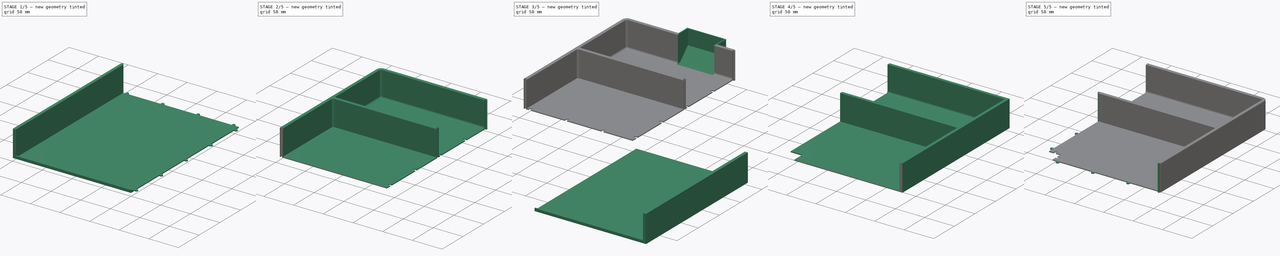
[diagram: build sequence overview — one tinted view per stage of 5, left to right]
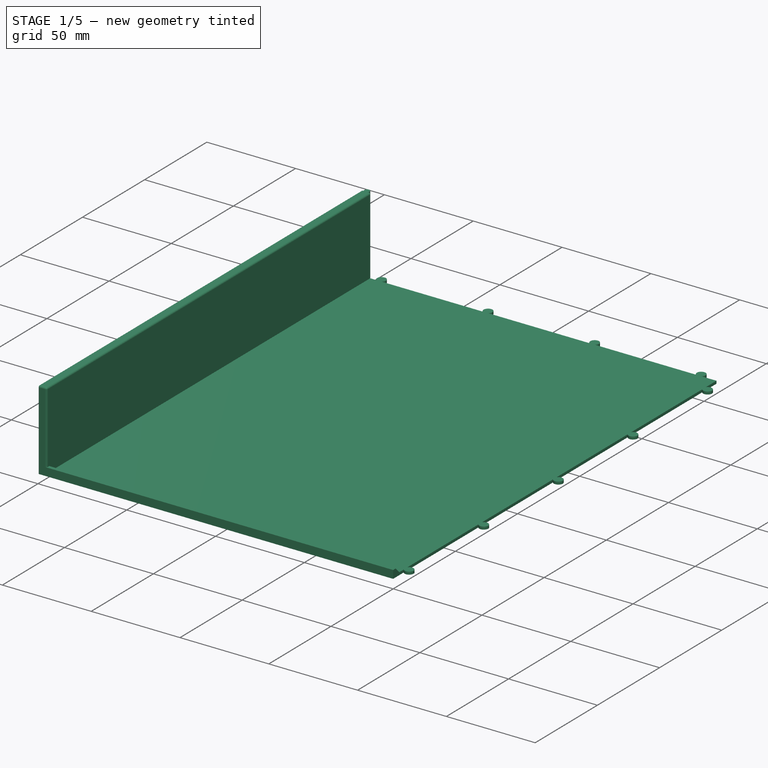
[diagram: stage 1 of 5 — iso view after this stage's code; geometry added in this stage tinted green]
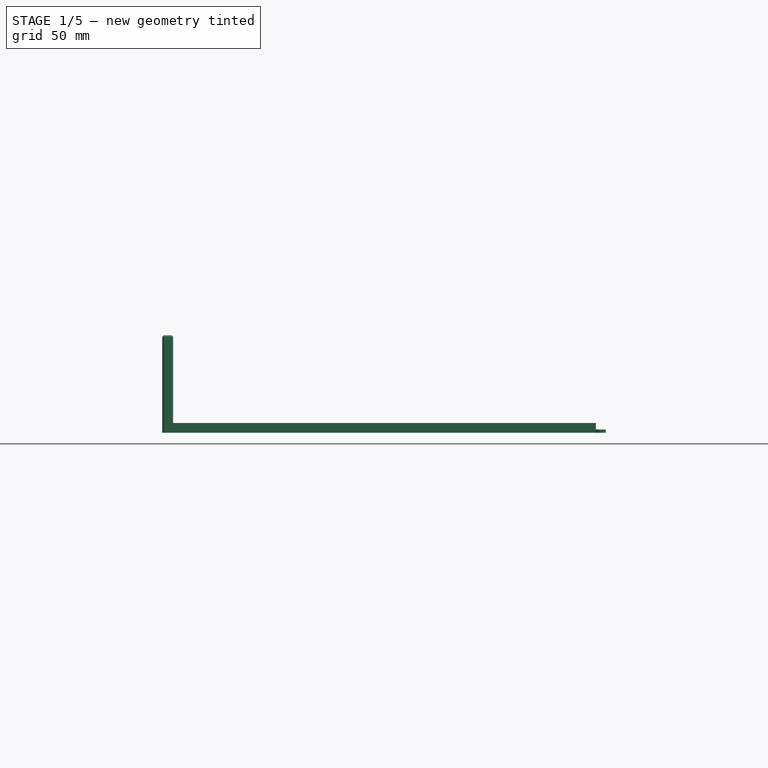
[diagram: stage 1 of 5 — front view after this stage's code; geometry added in this stage tinted green]
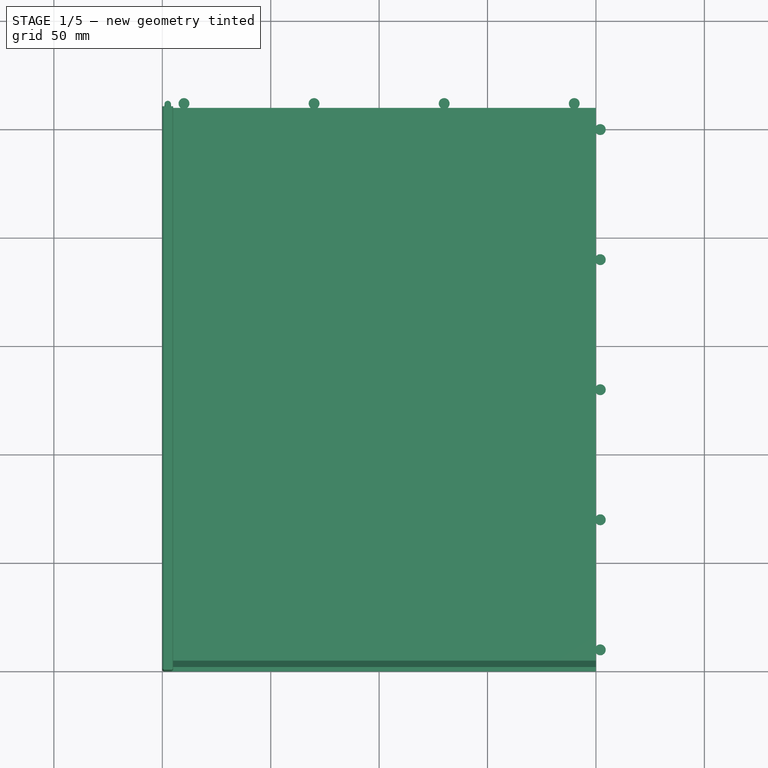
[diagram: stage 1 of 5 — top view after this stage's code; geometry added in this stage tinted green]
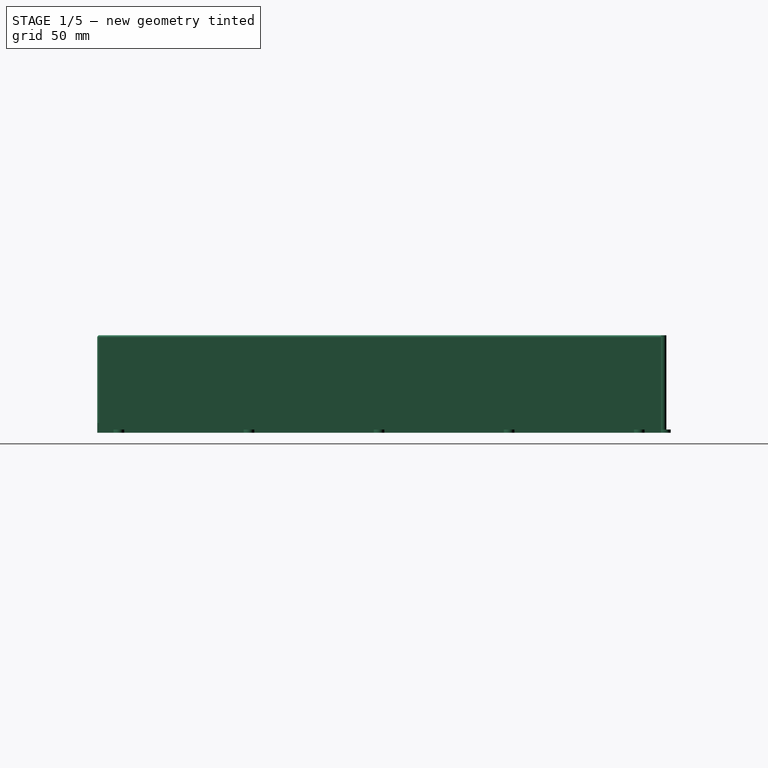
[diagram: stage 1 of 5 — right view after this stage's code; geometry added in this stage tinted green]
FCSTD DOCUMENT  (FreeCAD 1.1R20260325 (Git shallow))
Label: PoopAndPlatesDrawer
License: Creative Commons Attribution 4.0
objects: Sketcher::SketchObject×30, PartDesign::Pad×20, PartDesign::SubShapeBinder×9, PartDesign::Pocket×9, PartDesign::LinearPattern×8, PartDesign::Fillet×8, App::Point×4, PartDesign::Body×4
note: 200 computed .brp shape members not serialized (recipe doc carries the construction recipe); baked Part::Feature solids carry a one-line shape summary decoded from their .brp

FEATURE [App::Point] Origin001
  Role = Origin
FEATURE [Sketcher::SketchObject] Sketch  label="Master sketch"
  ArcFitTolerance = 1e-06
  AttachmentSupport = -> [Origin]
  ExternalTypes = [0]
  FullyConstrained = true
  MakeInternals = false
  MapMode = 5
  _ExternalGeoVersion = 1
  sketch-geometry (9):
    g0: LineSegment StartX=0 StartY=0 StartZ=0 EndX=384 EndY=0 EndZ=0
    g1: LineSegment StartX=384 StartY=0 StartZ=0 EndX=384 EndY=500 EndZ=0
    g2: LineSegment StartX=384 StartY=500 StartZ=0 EndX=0 EndY=500 EndZ=0
    g3: LineSegment StartX=0 StartY=500 StartZ=0 EndX=0 EndY=0 EndZ=0
    g4: LineSegment StartX=0 StartY=380 StartZ=0 EndX=384 EndY=380 EndZ=0
    g5: LineSegment StartX=0 StartY=260 StartZ=0 EndX=200 EndY=260 EndZ=0
    g6: LineSegment StartX=200 StartY=260 StartZ=0 EndX=200 EndY=0 EndZ=0
    g7: LineSegment StartX=200 StartY=240 StartZ=0 EndX=384 EndY=240 EndZ=0
    g8: LineSegment StartX=180 StartY=260 StartZ=0 EndX=180 EndY=500 EndZ=0
  constraints (30):
    c: Coincident(g0,g1)
    c: Coincident(g1,g2)
    c: Coincident(g2,g3)
    c: Coincident(g3,g0)
    c: Horizontal(g0)
    c: Horizontal(g2)
    c: Vertical(g1)
    c: Vertical(g3)
    c: Distance(g1,g3) = 384
    c: Distance(g0,g2) = 500
    c: Coincident(g0,g-1)
    c: PointOnObject(g4,g3)
    c: PointOnObject(g4,g1)
    c: Horizontal(g4)
    c: DistanceY(g0,g4) = 380
    c: Distance(g5) = 200
    c: PointOnObject(g5,g3)
    c: Horizontal(g5)
    c: Coincident(g6,g5)
    c: PointOnObject(g6,g0)
    c: Vertical(g6)
    c: PointOnObject(g7,g6)
    c: PointOnObject(g7,g1)
    c: Horizontal(g7)
    c: DistanceY(g7,g5) = 20
    c: DistanceY(g0,g5) = 260
    c: PointOnObject(g8,g5)
    c: PointOnObject(g8,g2)
    c: Vertical(g8)
    c: DistanceX(g8,g5) = 20
FEATURE [PartDesign::SubShapeBinder] Binder  label="Master sketch binder 1"
  BindCopyOnChange = 0
  BindMode = 0
  ClaimChildren = false
  Context = -> Body [Binder.]
  Fuse = false
  MakeFace = true
  OffsetFill = false
  OffsetIntersection = false
  OffsetJoinType = 0
  OffsetOpenResult = false
  PartialLoad = false
  Refine = true
  Relative = true
  Support = -> [Sketch]
  _Version = 2
FEATURE [Sketcher::SketchObject] Sketch001
  ArcFitTolerance = 1e-06
  AttachmentSupport = -> [Origin]
  ExternalGeometry = -> [Binder]
  ExternalTypes = [0]
  FullyConstrained = true
  MakeInternals = false
  MapMode = 5
  _ExternalGeoVersion = 1
  sketch-geometry (4):
    g0: LineSegment StartX=0 StartY=0 StartZ=0 EndX=200 EndY=0 EndZ=0
    g1: LineSegment StartX=200 StartY=0 StartZ=0 EndX=200 EndY=260 EndZ=0
    g2: LineSegment StartX=200 StartY=260 StartZ=0 EndX=0 EndY=260 EndZ=0
    g3: LineSegment StartX=0 StartY=260 StartZ=0 EndX=0 EndY=0 EndZ=0
  constraints (10):
    c: Coincident(g0,g1)
    c: Coincident(g1,g2)
    c: Coincident(g2,g3)
    c: Coincident(g3,g0)
    c: Horizontal(g0)
    c: Horizontal(g2)
    c: Vertical(g1)
    c: Vertical(g3)
    c: Coincident(g0,g-1)
    c: Coincident(g1,g-3)
FEATURE [PartDesign::Pad] Pad
  Direction = (0,0,1)
  Length = 1.5
  Length2 = 10
  Profile = -> Sketch001
  ReferenceAxis = -> Sketch001 [N_Axis]
  SideType = 0
  Suppressed = false
  Type = 0
  Type2 = 0
FEATURE [Sketcher::SketchObject] Sketch002
  ArcFitTolerance = 1e-06
  AttachmentSupport = -> [Pad]
  ExternalGeometry = -> [Pad]
  ExternalTypes = [0]
  FullyConstrained = true
  MakeInternals = false
  MapMode = 5
  Placement = pos=(0,0,1.5) rot=(0,0,1;0rad)
  _ExternalGeoVersion = 1
  sketch-geometry (4):
    g0: LineSegment StartX=0 StartY=0 StartZ=0 EndX=0 EndY=260 EndZ=0
    g1: LineSegment StartX=0 StartY=260 StartZ=0 EndX=5 EndY=260 EndZ=0
    g2: LineSegment StartX=5 StartY=260 StartZ=0 EndX=5 EndY=0 EndZ=0
    g3: LineSegment StartX=5 StartY=0 StartZ=0 EndX=0 EndY=0 EndZ=0
  constraints (11):
    c: Coincident(g-1,g0)
    c: PointOnObject(g0,g-2)
    c: Coincident(g0,g1)
    c: Horizontal(g1)
    c: Coincident(g1,g2)
    c: Vertical(g2)
    c: PointOnObject(g3,g-1)
    c: Coincident(g3,g0)
    c: Coincident(g3,g2)
    c: PointOnObject(g1,g-3)
    c: DistanceX(g3,g3) = 5
FEATURE [PartDesign::Pad] Pad001
  BaseFeature = -> Pad
  Direction = (0,0,1)
  Length = 43.5
  Length2 = 10
  Profile = -> Sketch002
  ReferenceAxis = -> Sketch002 [N_Axis]
  Refine = true
  SideType = 0
  Suppressed = false
  Type = 0
  Type2 = 0
FEATURE [Sketcher::SketchObject] Sketch003
  ArcFitTolerance = 1e-06
  AttachmentSupport = -> [Origin]
  ExternalGeometry = -> [Pad001]
  ExternalTypes = [0]
  FullyConstrained = true
  MakeInternals = false
  MapMode = 5
  _ExternalGeoVersion = 1
  sketch-geometry (1):
    g0: Circle CenterX=202 CenterY=10 CenterZ=0 NormalX=0 NormalY=0 NormalZ=1 AngleXU=0 Radius=2.5
  constraints (3):
    c: Diameter(g0) = 5
    c: DistanceY(g-1,g0) = 10
    c: DistanceX(g-3,g0) = 2
FEATURE [Sketcher::SketchObject] Sketch005
  ArcFitTolerance = 1e-06
  AttachmentSupport = -> [Pad001]
  ExternalGeometry = -> [Pad001]
  ExternalTypes = [0]
  FullyConstrained = true
  MakeInternals = false
  MapMode = 5
  Placement = pos=(5,0,0) rot=(0.57735,0.57735,0.57735;2.0944rad)
  _ExternalGeoVersion = 1
  sketch-geometry (4):
    g0: LineSegment StartX=0 StartY=1.5 StartZ=0 EndX=0 EndY=4.5 EndZ=0
    g1: LineSegment StartX=0 StartY=4.5 StartZ=0 EndX=2 EndY=4.5 EndZ=0
    g2: LineSegment StartX=2 StartY=4.5 StartZ=0 EndX=5 EndY=1.5 EndZ=0
    g3: LineSegment StartX=5 StartY=1.5 StartZ=0 EndX=0 EndY=1.5 EndZ=0
  constraints (11):
    c: PointOnObject(g0,g-2)
    c: Coincident(g0,g1)
    c: Horizontal(g1)
    c: Coincident(g1,g2)
    c: Coincident(g2,g3)
    c: Coincident(g3,g0)
    c: DistanceY(g0,g0) = 3
    c: DistanceX(g1,g1) = 2
    c: DistanceX(g3,g3) = 5
    c: Coincident(g0,g-3)
    c: PointOnObject(g2,g-3)
FEATURE [PartDesign::Pad] Pad004
  BaseFeature = -> Pad001
  Direction = (1,0,0)
  Length = 10
  Length2 = 10
  Profile = -> Sketch005
  ReferenceAxis = -> Sketch005 [N_Axis]
  Refine = true
  SideType = 0
  Suppressed = false
  Type = 3
  Type2 = 0
  UpToFace = -> Pad [Face2]
FEATURE [PartDesign::Pad] Pad002
  BaseFeature = -> Pad004
  Direction = (0,0,1)
  Length = 10
  Length2 = 10
  Profile = -> Sketch003
  ReferenceAxis = -> Sketch003 [N_Axis]
  Refine = true
  SideType = 0
  Suppressed = false
  Type = 3
  Type2 = 0
  UpToFace = -> Pad001 [Face3]
FEATURE [PartDesign::LinearPattern] LinearPattern
  BaseFeature = -> Pad002
  Direction = -> Sketch003 [V_Axis]
  Direction2 = -> Sketch003 [V_Axis]
  Length = 240
  Length2 = 100
  Mode = 1
  Mode2 = 0
  Occurrences = 5
  Occurrences2 = 1
  Offset = 60
  Offset2 = 100
  Originals = -> [Pad002]
  Refine = true
  Reversed2 = false
  SpacingPattern = [0]
  SpacingPattern2 = [0]
  Spacings = [-1,-1,-1,-1]
  Suppressed = false
  TransformMode = 0
FEATURE [Sketcher::SketchObject] Sketch004
  ArcFitTolerance = 1e-06
  AttachmentSupport = -> [Origin]
  ExternalGeometry = -> [LinearPattern]
  ExternalTypes = [0]
  FullyConstrained = true
  MakeInternals = false
  MapMode = 5
  _ExternalGeoVersion = 1
  sketch-geometry (2):
    g0: Circle CenterX=2.5 CenterY=261 CenterZ=0 NormalX=0 NormalY=0 NormalZ=1 AngleXU=0 Radius=1.5
    g1: GeomPoint [constr] X=2.5 Y=260 Z=0
  constraints (4):
    c: Diameter(g0) = 3
    c: Symmetric(g-3,g-3,g1)
    c: Vertical(g0,g1)
    c: DistanceY(g1,g0) = 1
FEATURE [PartDesign::Pad] Pad003
  BaseFeature = -> LinearPattern
  Direction = (0,0,1)
  Length = 10
  Length2 = 10
  Profile = -> Sketch004
  ReferenceAxis = -> Sketch004 [N_Axis]
  Refine = true
  SideType = 0
  Suppressed = false
  Type = 3
  Type2 = 0
  UpToFace = -> LinearPattern [Face7]
FEATURE [Sketcher::SketchObject] Sketch006
  ArcFitTolerance = 1e-06
  AttachmentSupport = -> [Origin]
  ExternalGeometry = -> [Pad004]
  ExternalTypes = [0]
  FullyConstrained = true
  MakeInternals = false
  MapMode = 5
  _ExternalGeoVersion = 1
  sketch-geometry (1):
    g0: Circle CenterX=190 CenterY=262 CenterZ=0 NormalX=0 NormalY=0 NormalZ=1 AngleXU=0 Radius=2.5
  constraints (3):
    c: Diameter(g0) = 5
    c: DistanceX(g0,g-3) = 10
    c: DistanceY(g-3,g0) = 2
FEATURE [PartDesign::Pad] Pad005
  BaseFeature = -> Pad003
  Direction = (0,0,1)
  Length = 10
  Length2 = 10
  Profile = -> Sketch006
  ReferenceAxis = -> Sketch006 [N_Axis]
  Refine = true
  SideType = 0
  Suppressed = false
  Type = 3
  Type2 = 0
  UpToFace = -> Pad [Face6]
FEATURE [PartDesign::LinearPattern] LinearPattern001
  BaseFeature = -> Pad005
  Direction = -> Sketch006 [H_Axis]
  Direction2 = -> Sketch006 [V_Axis]
  Length = 180
  Length2 = 100
  Mode = 1
  Mode2 = 0
  Occurrences = 4
  Occurrences2 = 1
  Offset = 60
  Offset2 = 100
  Originals = -> [Pad005]
  Refine = true
  Reversed = true
  Reversed2 = false
  SpacingPattern = [60]
  SpacingPattern2 = [0]
  Spacings = [-1,-1,-1]
  Suppressed = false
  TransformMode = 0
FEATURE [App::Point] Origin005  label="Origin006"
  Role = Origin
FEATURE [PartDesign::SubShapeBinder] Binder003  label="Master sketch binder 3"
  BindCopyOnChange = 0
  BindMode = 0
  ClaimChildren = false
  Context = -> Body002 [Binder003.]
  Fuse = false
  MakeFace = true
  OffsetFill = false
  OffsetIntersection = false
  OffsetJoinType = 0
  OffsetOpenResult = false
  PartialLoad = false
  Refine = true
  Relative = true
  Support = -> [Sketch]
  _Version = 2
FEATURE [Sketcher::SketchObject] Sketch013
  ArcFitTolerance = 1e-06
  AttachmentSupport = -> [Origin004]
  ExternalGeometry = -> [Binder003]
  ExternalTypes = [0]
  FullyConstrained = true
  MakeInternals = false
  MapMode = 5
  _ExternalGeoVersion = 1
  sketch-geometry (4):
    g0: LineSegment StartX=180 StartY=500 StartZ=0 EndX=0 EndY=500 EndZ=0
    g1: LineSegment StartX=0 StartY=500 StartZ=0 EndX=0 EndY=260 EndZ=0
    g2: LineSegment StartX=0 StartY=260 StartZ=0 EndX=180 EndY=260 EndZ=0
    g3: LineSegment StartX=180 StartY=260 StartZ=0 EndX=180 EndY=500 EndZ=0
  constraints (10):
    c: Coincident(g0,g1)
    c: Coincident(g1,g2)
    c: Coincident(g2,g3)
    c: Coincident(g3,g0)
    c: Horizontal(g0)
    c: Horizontal(g2)
    c: Vertical(g1)
    c: Coincident(g0,g-3)
    c: PointOnObject(g1,g-2)
    c: Coincident(g2,g-3)
FEATURE [PartDesign::SubShapeBinder] Binder004  label="Body 1 binder"
  BindCopyOnChange = 0
  BindMode = 0
  ClaimChildren = false
  Context = -> Body002 [Binder004.]
  Fuse = false
  MakeFace = true
  OffsetFill = false
  OffsetIntersection = false
  OffsetJoinType = 0
  OffsetOpenResult = false
  PartialLoad = false
  Refine = true
  Relative = true
  Support = -> [Body[LinearPattern001.]]
  _Version = 2
FEATURE [PartDesign::Fillet] Fillet002
  Base = -> LinearPattern001 [Edge76,Edge64,Edge73,Edge74,Edge63]
  BaseFeature = -> LinearPattern001
  Radius = 1
  SupportTransform = false
  Suppressed = false
  UseAllEdges = false
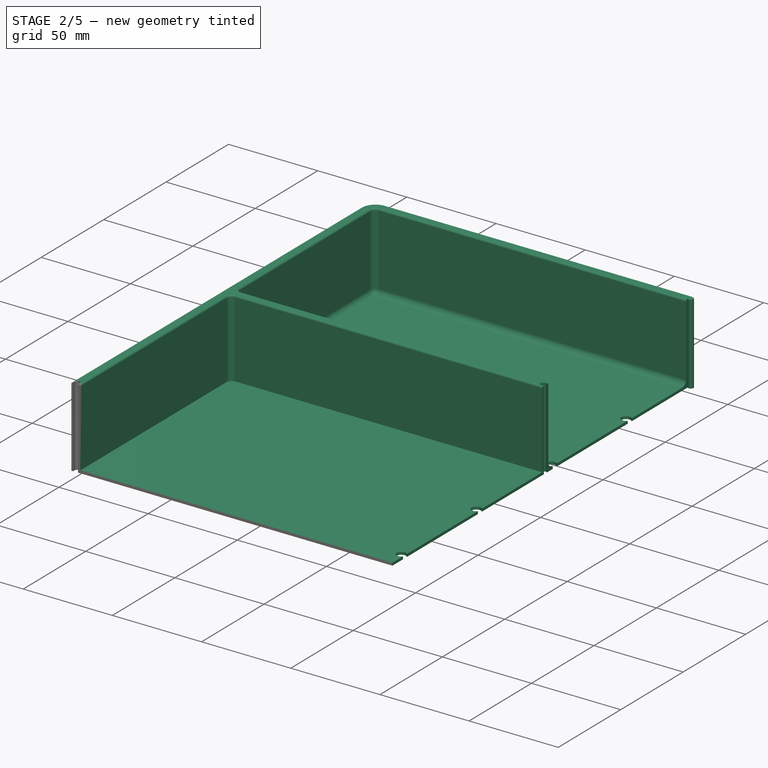
[diagram: stage 2 of 5 — iso view after this stage's code; geometry added in this stage tinted green]
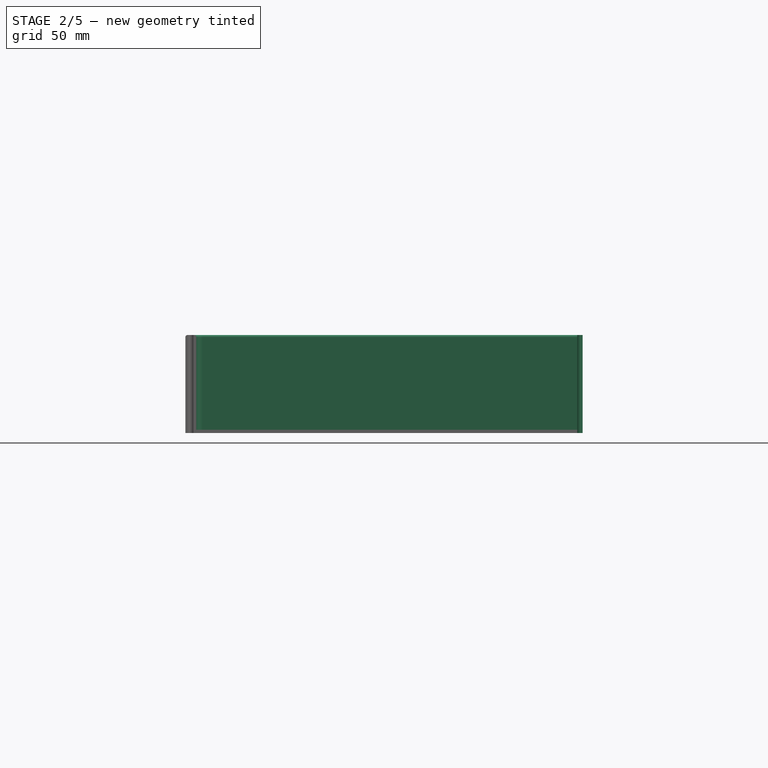
[diagram: stage 2 of 5 — front view after this stage's code; geometry added in this stage tinted green]
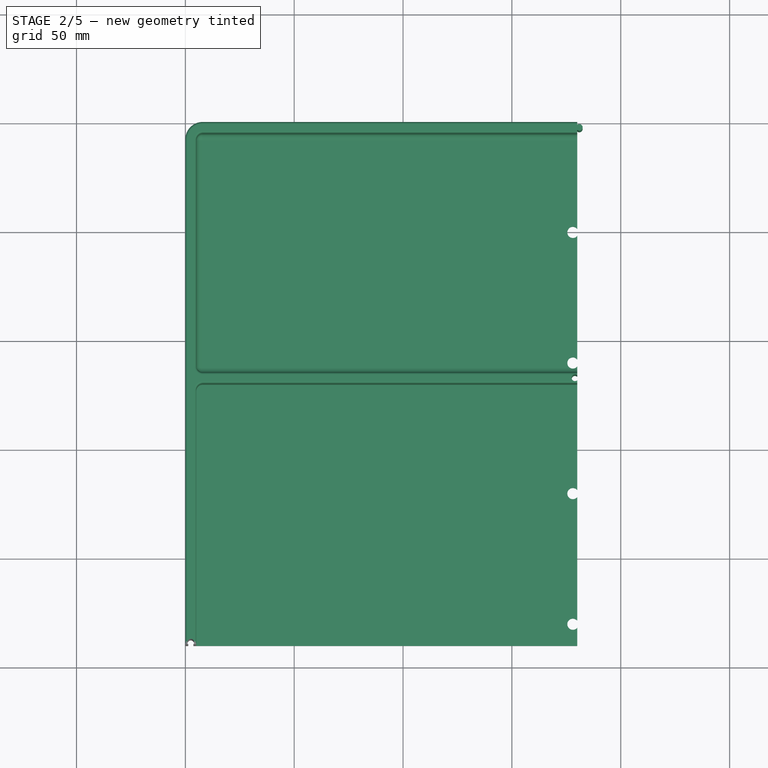
[diagram: stage 2 of 5 — top view after this stage's code; geometry added in this stage tinted green]
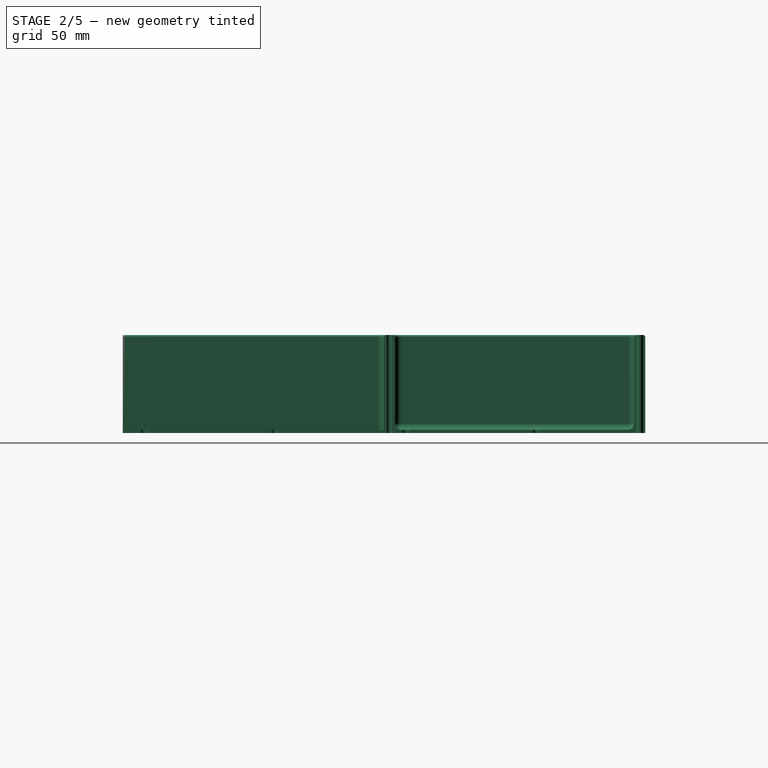
[diagram: stage 2 of 5 — right view after this stage's code; geometry added in this stage tinted green]
FEATURE [PartDesign::Body] Body  label="Body 1"
  AllowCompound = false
  Group = -> [Binder,Sketch001,Pad,Sketch002,Pad001,Pad004,Sketch003,Pad002,LinearPattern,Sketch004,Pad003,Sketch005,Sketch006,Pad005,LinearPattern001,Fillet002]
  Origin = -> Origin
  Tip = -> Fillet002
FEATURE [PartDesign::Pad] Pad009
  Direction = (0,0,1)
  Length = 10
  Length2 = 10
  Profile = -> Sketch013
  ReferenceAxis = -> Sketch013 [N_Axis]
  SideType = 0
  Suppressed = false
  Type = 3
  Type2 = 0
  UpToFace = -> Fillet002 [Face6]
FEATURE [Sketcher::SketchObject] Sketch014
  ArcFitTolerance = 1e-06
  AttachmentSupport = -> [Pad009]
  ExternalGeometry = -> [Binder003,Binder004]
  ExternalTypes = [0,0,0]
  FullyConstrained = true
  MakeInternals = false
  MapMode = 5
  Placement = pos=(0,0,1.5) rot=(0,0,1;0rad)
  _ExternalGeoVersion = 1
  sketch-geometry (10):
    g0: LineSegment StartX=180 StartY=500 StartZ=0 EndX=0 EndY=500 EndZ=0
    g1: LineSegment StartX=0 StartY=500 StartZ=0 EndX=0 EndY=260 EndZ=0
    g2: LineSegment StartX=0 StartY=260 StartZ=0 EndX=5 EndY=260 EndZ=0
    g3: LineSegment StartX=5 StartY=260 StartZ=0 EndX=5 EndY=380 EndZ=0
    g4: LineSegment StartX=5 StartY=380 StartZ=0 EndX=180 EndY=380 EndZ=0
    g5: LineSegment StartX=180 StartY=380 StartZ=0 EndX=180 EndY=385 EndZ=0
    g6: LineSegment StartX=180 StartY=385 StartZ=0 EndX=5 EndY=385 EndZ=0
    g7: LineSegment StartX=5 StartY=385 StartZ=0 EndX=5 EndY=495 EndZ=0
    g8: LineSegment StartX=5 StartY=495 StartZ=0 EndX=180 EndY=495 EndZ=0
    g9: LineSegment StartX=180 StartY=495 StartZ=0 EndX=180 EndY=500 EndZ=0
  constraints (28):
    c: Coincident(g-4,g0)
    c: PointOnObject(g0,g-2)
    c: Horizontal(g0)
    c: Coincident(g0,g1)
    c: PointOnObject(g1,g-2)
    c: Coincident(g1,g2)
    c: Coincident(g2,g3)
    c: PointOnObject(g3,g-3)
    c: Vertical(g3)
    c: Coincident(g3,g4)
    c: PointOnObject(g4,g-3)
    c: Coincident(g4,g5)
    c: Vertical(g5)
    c: Coincident(g5,g6)
    c: Horizontal(g6)
    c: Coincident(g6,g7)
    c: Vertical(g7)
    c: Coincident(g7,g8)
    c: PointOnObject(g8,g-4)
    c: Horizontal(g8)
    c: Coincident(g8,g9)
    c: Coincident(g9,g0)
    c: PointOnObject(g5,g-4)
    c: Horizontal(g2)
    c: Equal(g2,g5)
    c: Equal(g5,g9)
    c: Vertical(g3,g6)
    c: Coincident(g2,g-5)
FEATURE [PartDesign::Pad] Pad010
  BaseFeature = -> Pad009
  Direction = (0,0,1)
  Length = 10
  Length2 = 10
  Profile = -> Sketch014
  ReferenceAxis = -> Sketch014 [N_Axis]
  Refine = true
  SideType = 0
  Suppressed = false
  Type = 3
  Type2 = 0
  UpToFace = -> Binder004 [Face23]
FEATURE [PartDesign::Fillet] Fillet
  Base = -> Pad010 [Edge17,Edge21,Edge16,Edge15,Edge29,Edge14]
  BaseFeature = -> Pad010
  Radius = 3
  SupportTransform = false
  Suppressed = false
  UseAllEdges = false
FEATURE [PartDesign::Fillet] Fillet001
  Base = -> Fillet [Edge35]
  BaseFeature = -> Fillet
  Radius = 8
  SupportTransform = false
  Suppressed = false
  UseAllEdges = false
FEATURE [PartDesign::Body] Body001  label="Body 2"
  AllowCompound = false
  Group = -> [Binder001,Binder002,Sketch007,Pad006,Sketch008,Sketch009,Pad007,Sketch010,Pad008,Pocket,LinearPattern002,Sketch011,Pocket001,LinearPattern003,Sketch012,Pocket002,Fillet003]
  Origin = -> Origin002
  Tip = -> Fillet003
FEATURE [Sketcher::SketchObject] Sketch015
  ArcFitTolerance = 1e-06
  AttachmentSupport = -> [Origin004]
  ExternalGeometry = -> [Fillet001]
  ExternalTypes = [0,0]
  FullyConstrained = true
  MakeInternals = false
  MapMode = 5
  _ExternalGeoVersion = 1
  sketch-geometry (4):
    g0: Circle CenterX=2.5 CenterY=261 CenterZ=0 NormalX=0 NormalY=0 NormalZ=1 AngleXU=0 Radius=1.55
    g1: Circle CenterX=179 CenterY=382.5 CenterZ=0 NormalX=0 NormalY=0 NormalZ=1 AngleXU=0 Radius=1.55
    g2: GeomPoint [constr] X=180 Y=382.5 Z=0
    g3: GeomPoint [constr] X=2.5 Y=260 Z=0
  constraints (8):
    c: Diameter(g0) = 3.1
    c: Diameter(g1) = 3.1
    c: Symmetric(g-4,g-4,g2)
    c: Symmetric(g-3,g-3,g3)
    c: Vertical(g0,g3)
    c: DistanceY(g3,g0) = 1
    c: Horizontal(g1,g2)
    c: DistanceX(g1,g2) = 1
FEATURE [PartDesign::Pocket] Pocket003
  BaseFeature = -> Fillet001
  Direction = (0,0,-1)
  Length = 5
  Length2 = 5
  Profile = -> Sketch015
  ReferenceAxis = -> Sketch015 [N_Axis]
  Reversed = true
  SideType = 0
  Suppressed = false
  Type = 1
  Type2 = 0
FEATURE [Sketcher::SketchObject] Sketch016
  ArcFitTolerance = 1e-06
  AttachmentSupport = -> [Origin004]
  ExternalGeometry = -> [Pad010]
  ExternalTypes = [0]
  FullyConstrained = true
  MakeInternals = false
  MapMode = 5
  _ExternalGeoVersion = 1
  sketch-geometry (2):
    g0: Circle CenterX=181 CenterY=497.5 CenterZ=0 NormalX=0 NormalY=0 NormalZ=1 AngleXU=0 Radius=1.5
    g1: GeomPoint [constr] X=180 Y=497.5 Z=0
  constraints (4):
    c: Diameter(g0) = 3
    c: Symmetric(g-3,g-3,g1)
    c: Horizontal(g1,g0)
    c: DistanceX(g1,g0) = 1
FEATURE [PartDesign::Pad] Pad011
  BaseFeature = -> Pocket003
  Direction = (0,0,1)
  Length = 10
  Length2 = 10
  Profile = -> Sketch016
  ReferenceAxis = -> Sketch016 [N_Axis]
  Refine = true
  SideType = 0
  Suppressed = false
  Type = 3
  Type2 = 0
  UpToFace = -> Pad010 [Face7]
FEATURE [Sketcher::SketchObject] Sketch017
  ArcFitTolerance = 1e-06
  AttachmentSupport = -> [Origin004]
  ExternalGeometry = -> [Pad009]
  ExternalTypes = [0]
  FullyConstrained = true
  MakeInternals = false
  MapMode = 5
  _ExternalGeoVersion = 1
  sketch-geometry (1):
    g0: Circle CenterX=178 CenterY=270 CenterZ=0 NormalX=0 NormalY=0 NormalZ=1 AngleXU=0 Radius=2.55
  constraints (3):
    c: Diameter(g0) = 5.1
    c: DistanceY(g-3,g0) = 10
    c: DistanceX(g0,g-3) = 2
FEATURE [PartDesign::Pocket] Pocket004
  BaseFeature = -> Pad011
  Direction = (0,0,-1)
  Length = 5
  Length2 = 5
  Profile = -> Sketch017
  ReferenceAxis = -> Sketch017 [N_Axis]
  Reversed = true
  SideType = 0
  Suppressed = false
  Type = 1
  Type2 = 0
FEATURE [PartDesign::LinearPattern] LinearPattern004
  BaseFeature = -> Pocket004
  Direction = -> Sketch017 [V_Axis]
  Direction2 = -> Sketch017 [V_Axis]
  Length = 180
  Length2 = 100
  Mode = 1
  Mode2 = 0
  Occurrences = 4
  Occurrences2 = 1
  Offset = 60
  Offset2 = 100
  Originals = -> [Pocket004]
  Reversed2 = false
  SpacingPattern = [60]
  SpacingPattern2 = [0]
  Spacings = [-1,-1,-1]
  Suppressed = false
  TransformMode = 0
FEATURE [PartDesign::Fillet] Fillet004
  Base = -> LinearPattern004 [Edge15,Edge7,Edge23]
  BaseFeature = -> LinearPattern004
  Radius = 1
  SupportTransform = false
  Suppressed = false
  UseAllEdges = false
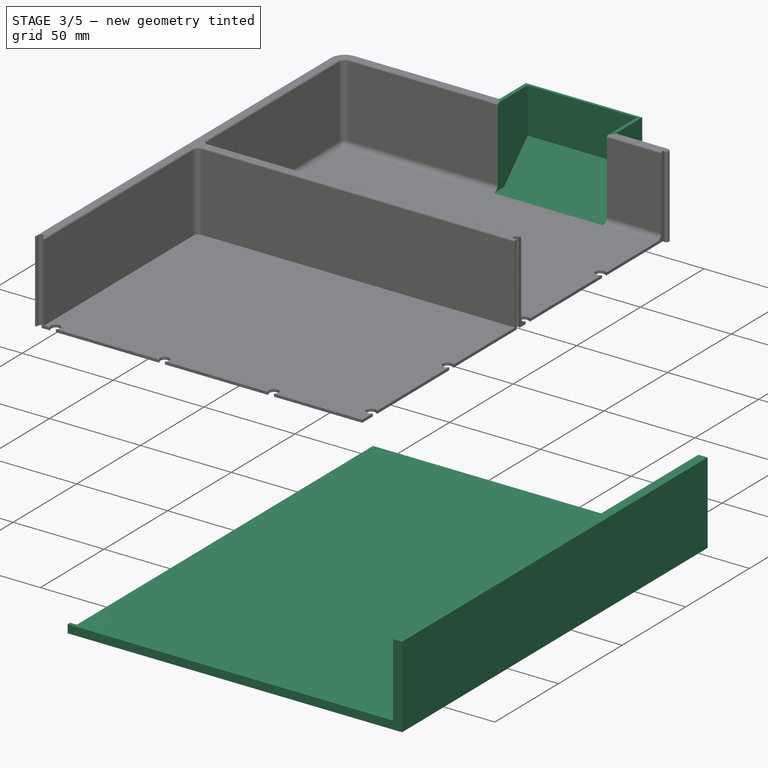
[diagram: stage 3 of 5 — iso view after this stage's code; geometry added in this stage tinted green]
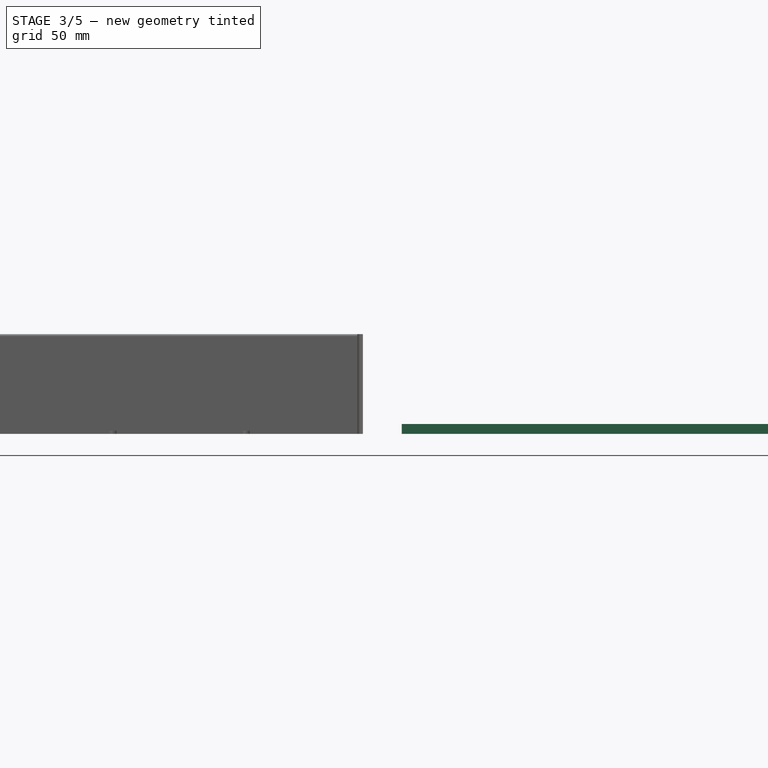
[diagram: stage 3 of 5 — front view after this stage's code; geometry added in this stage tinted green]
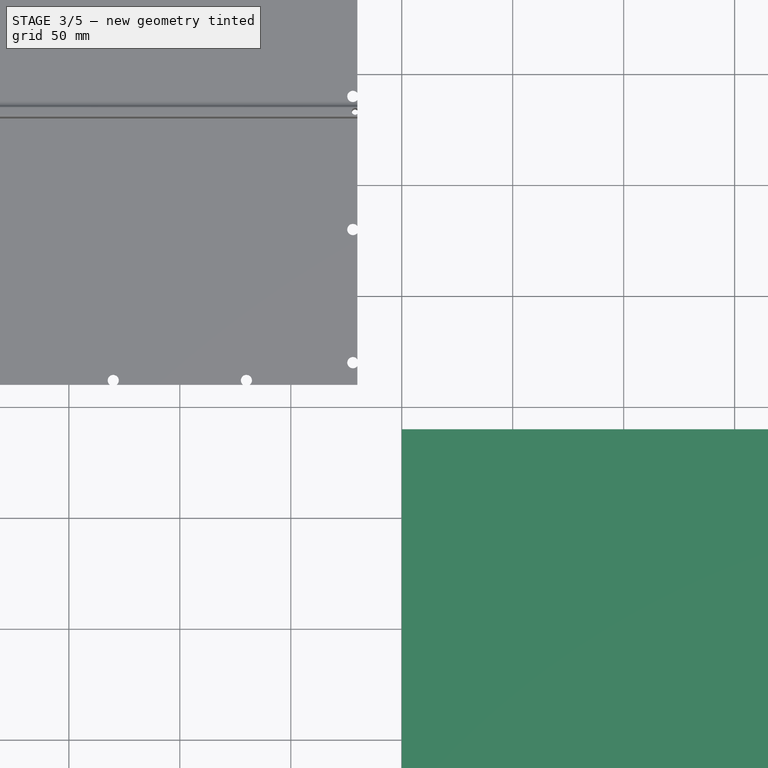
[diagram: stage 3 of 5 — top view after this stage's code; geometry added in this stage tinted green]
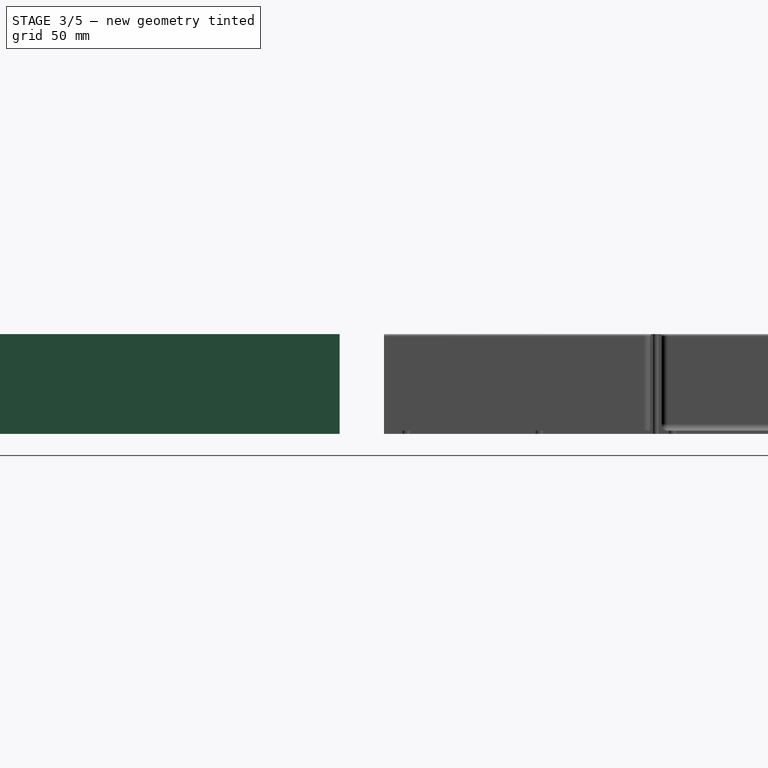
[diagram: stage 3 of 5 — right view after this stage's code; geometry added in this stage tinted green]
FEATURE [App::Point] Origin003
  Role = Origin
FEATURE [PartDesign::SubShapeBinder] Binder001  label="Master sketch binder 2"
  BindCopyOnChange = 0
  BindMode = 0
  ClaimChildren = false
  Context = -> Body001 [Binder001.]
  Fuse = false
  MakeFace = true
  OffsetFill = false
  OffsetIntersection = false
  OffsetJoinType = 0
  OffsetOpenResult = false
  PartialLoad = false
  Refine = true
  Relative = true
  Support = -> [Sketch]
  _Version = 2
FEATURE [Sketcher::SketchObject] Sketch007
  ArcFitTolerance = 1e-06
  AttachmentSupport = -> [Origin002]
  ExternalGeometry = -> [Binder001]
  ExternalTypes = [0]
  FullyConstrained = true
  MakeInternals = false
  MapMode = 5
  _ExternalGeoVersion = 1
  sketch-geometry (3):
    g0: LineSegment StartX=384 StartY=240 StartZ=0 EndX=384 EndY=0 EndZ=0
    g1: LineSegment StartX=384 StartY=0 StartZ=0 EndX=200 EndY=0 EndZ=0
    g2: LineSegment StartX=200 StartY=0 StartZ=0 EndX=200 EndY=240 EndZ=0
  constraints (8):
    c: Coincident(g-3,g0)
    c: PointOnObject(g0,g-1)
    c: Vertical(g0)
    c: Coincident(g0,g1)
    c: PointOnObject(g1,g-1)
    c: Coincident(g1,g2)
    c: Coincident(g2,g-3)
    c: Vertical(g2)
FEATURE [Sketcher::SketchObject] Sketch008
  ArcFitTolerance = 1e-06
  AttachmentSupport = -> [Origin002]
  ExternalTypes = [0]
  FullyConstrained = true
  MakeInternals = false
  MapMode = 5
  _ExternalGeoVersion = 1
  sketch-geometry (2):
    g0: Circle CenterX=202 CenterY=10 CenterZ=0 NormalX=0 NormalY=0 NormalZ=1 AngleXU=0 Radius=2.6
    g1: LineSegment [constr] StartX=202 StartY=10 StartZ=0 EndX=204.6 EndY=10 EndZ=0
  constraints (5):
    c: Coincident(g0,g-3)
    c: Coincident(g1,g0)
    c: PointOnObject(g1,g0)
    c: PointOnObject(g-3,g1)
    c: Distance(g-3,g1) = 0.1
FEATURE [PartDesign::SubShapeBinder] Binder002  label="Body 1 base features"
  BindCopyOnChange = 0
  BindMode = 0
  ClaimChildren = false
  Context = -> Body001 [Binder002.]
  Fuse = false
  MakeFace = true
  OffsetFill = false
  OffsetIntersection = false
  OffsetJoinType = 0
  OffsetOpenResult = false
  PartialLoad = false
  Refine = true
  Relative = true
  Support = -> [Body[Pad002.]]
  _Version = 2
FEATURE [PartDesign::Pad] Pad006
  Direction = (0,0,1)
  Length = 10
  Length2 = 10
  Profile = -> Sketch007
  ReferenceAxis = -> Sketch007 [N_Axis]
  SideType = 0
  Suppressed = false
  Type = 3
  Type2 = 0
  UpToFace = -> Binder002 [Face11]
FEATURE [Sketcher::SketchObject] Sketch009
  ArcFitTolerance = 1e-06
  AttachmentSupport = -> [Pad006]
  ExternalGeometry = -> [Pad006,Binder002]
  ExternalTypes = [0,0]
  FullyConstrained = true
  MakeInternals = false
  MapMode = 5
  Placement = pos=(0,0,1.5) rot=(0,0,1;0rad)
  _ExternalGeoVersion = 1
  sketch-geometry (4):
    g0: LineSegment StartX=384 StartY=0 StartZ=0 EndX=384 EndY=240 EndZ=0
    g1: LineSegment StartX=384 StartY=240 StartZ=0 EndX=379 EndY=240 EndZ=0
    g2: LineSegment StartX=379 StartY=240 StartZ=0 EndX=379 EndY=0 EndZ=0
    g3: LineSegment StartX=379 StartY=0 StartZ=0 EndX=384 EndY=0 EndZ=0
  constraints (10):
    c: Coincident(g0,g1)
    c: Coincident(g1,g2)
    c: Coincident(g2,g3)
    c: Coincident(g3,g0)
    c: Vertical(g2)
    c: Horizontal(g1)
    c: Horizontal(g3)
    c: Coincident(g0,g-3)
    c: Coincident(g0,g-3)
    c: Equal(g-4,g3)
FEATURE [PartDesign::Pad] Pad007
  BaseFeature = -> Pad006
  Direction = (0,0,1)
  Length = 10
  Length2 = 10
  Profile = -> Sketch009
  ReferenceAxis = -> Sketch009 [N_Axis]
  Refine = true
  SideType = 0
  Suppressed = false
  Type = 3
  Type2 = 0
  UpToFace = -> Binder002 [Face6]
FEATURE [Sketcher::SketchObject] Sketch010
  ArcFitTolerance = 1e-06
  AttachmentSupport = -> [Pad007]
  ExternalGeometry = -> [Binder002,Pad007]
  ExternalTypes = [0,0]
  FullyConstrained = true
  MakeInternals = false
  MapMode = 5
  Placement = pos=(379,0,0) rot=(0.57735,-0.57735,-0.57735;2.0944rad)
  _ExternalGeoVersion = 1
  sketch-geometry (3):
    g0: LineSegment StartX=0 StartY=1.5 StartZ=0 EndX=0 EndY=4.5 EndZ=0
    g1: LineSegment StartX=0 StartY=1.5 StartZ=0 EndX=-5 EndY=1.5 EndZ=0
    g2: LineSegment StartX=-2 StartY=4.5 StartZ=0 EndX=-5 EndY=1.5 EndZ=0
  constraints (7):
    c: Coincident(g0,g-4)
    c: Coincident(g0,g-3)
    c: Coincident(g1,g0)
    c: PointOnObject(g1,g-4)
    c: Coincident(g2,g-3)
    c: Coincident(g2,g1)
    c: Angle(g1,g2) = 0.785398
FEATURE [PartDesign::Pad] Pad008
  BaseFeature = -> Pad007
  Direction = (-1,0,0)
  Length = 10
  Length2 = 10
  Profile = -> Sketch010
  ReferenceAxis = -> Sketch010 [N_Axis]
  Refine = true
  SideType = 0
  Suppressed = false
  Type = 3
  Type2 = 0
  UpToFace = -> Pad007 [Face2]
FEATURE [PartDesign::Body] Body003  label="Body 4"
  AllowCompound = false
  Group = -> [Binder005,Binder008,Binder006,Binder007,Sketch018,Pad012,Sketch019,Pad013,Fillet005,Fillet006,Sketch020,Pad014,Sketch021,Pocket005,Fillet007,Sketch022,Pad015,LinearPattern005,Sketch023,Pad016,LinearPattern006,Sketch024,Pocket006]
  Origin = -> Origin006
  Tip = -> Pocket006
FEATURE [Sketcher::SketchObject] Sketch025
  ArcFitTolerance = 1e-06
  AttachmentSupport = -> [Origin004]
  ExternalGeometry = -> [Binder004]
  ExternalTypes = [0]
  FullyConstrained = true
  MakeInternals = false
  MapMode = 5
  _ExternalGeoVersion = 1
  sketch-geometry (1):
    g0: Circle CenterX=10 CenterY=262 CenterZ=0 NormalX=0 NormalY=0 NormalZ=1 AngleXU=0 Radius=2.5
  constraints (2):
    c: Coincident(g0,g-3)
    c: Equal(g0,g-3)
FEATURE [PartDesign::Pocket] Pocket007
  BaseFeature = -> Fillet004
  Direction = (0,0,-1)
  Length = 5
  Length2 = 5
  Profile = -> Sketch025
  ReferenceAxis = -> Sketch025 [N_Axis]
  Reversed = true
  SideType = 0
  Suppressed = false
  Type = 1
  Type2 = 0
FEATURE [PartDesign::LinearPattern] LinearPattern007
  BaseFeature = -> Pocket007
  Direction = -> Sketch025 [H_Axis]
  Direction2 = -> Sketch025 [V_Axis]
  Length = 120
  Length2 = 100
  Mode = 1
  Mode2 = 0
  Occurrences = 3
  Occurrences2 = 1
  Offset = 60
  Offset2 = 100
  Originals = -> [Pocket007]
  Reversed2 = false
  SpacingPattern = [60]
  SpacingPattern2 = [0]
  Spacings = [-1,-1]
  Suppressed = false
  TransformMode = 0
FEATURE [Sketcher::SketchObject] Sketch026
  ArcFitTolerance = 1e-06
  AttachmentSupport = -> [Pad010]
  ExternalGeometry = -> [Pad010,Pad009]
  ExternalTypes = [0,0]
  FullyConstrained = true
  MakeInternals = false
  MapMode = 5
  Placement = pos=(0,495,0) rot=(1,0,0;1.5708rad)
  _ExternalGeoVersion = 1
  sketch-geometry (4):
    g0: LineSegment StartX=90 StartY=1.5 StartZ=0 EndX=150 EndY=1.5 EndZ=0
    g1: LineSegment StartX=150 StartY=1.5 StartZ=0 EndX=150 EndY=45 EndZ=0
    g2: LineSegment StartX=150 StartY=45 StartZ=0 EndX=90 EndY=45 EndZ=0
    g3: LineSegment StartX=90 StartY=45 StartZ=0 EndX=90 EndY=1.5 EndZ=0
  constraints (13):
    c: Coincident(g0,g1)
    c: Coincident(g1,g2)
    c: Coincident(g2,g3)
    c: Coincident(g3,g0)
    c: Horizontal(g0)
    c: Horizontal(g2)
    c: Vertical(g1)
    c: Vertical(g3)
    c: Horizontal(g-3,g2)
    c: DistanceX(g0,g-4) = 30
    c: DistanceX(g2,g2) = 60
    c: DistanceX(g-3,g2) = 90  'PoopChuteDistance'
    c: Horizontal(g0,g-4)
FEATURE [PartDesign::Pocket] Pocket008
  BaseFeature = -> LinearPattern007
  Direction = (0,1,-2e-16)
  Length = 5
  Length2 = 10
  Profile = -> Sketch026
  ReferenceAxis = -> Sketch026 [N_Axis]
  Refine = true
  SideType = 1
  Suppressed = false
  Type = 1
  Type2 = 0
FEATURE [Sketcher::SketchObject] Sketch027
  ArcFitTolerance = 1e-06
  AttachmentSupport = -> [Pocket008]
  ExternalGeometry = -> [Pocket008]
  ExternalTypes = [0,0]
  FullyConstrained = true
  MakeInternals = false
  MapMode = 5
  Placement = pos=(90,0,0) rot=(0.57735,0.57735,0.57735;2.0944rad)
  _ExternalGeoVersion = 1
  sketch-geometry (4):
    g0: LineSegment StartX=499 StartY=45 StartZ=0 EndX=520 EndY=45 EndZ=0
    g1: LineSegment StartX=520 StartY=45 StartZ=0 EndX=520 EndY=20 EndZ=0
    g2: LineSegment StartX=500 StartY=0 StartZ=0 EndX=500 EndY=44 EndZ=0
    g3: LineSegment StartX=520 StartY=20 StartZ=0 EndX=500 EndY=0 EndZ=0
  constraints (11):
    c: Horizontal(g0)
    c: Coincident(g0,g1)
    c: Vertical(g1)
    c: Vertical(g2)
    c: Coincident(g2,g-3)
    c: Coincident(g0,g-3)
    c: DistanceX(g2,g1) = 20
    c: PointOnObject(g2,g-1)
    c: Coincident(g3,g1)
    c: Coincident(g3,g2)
    c: Angle(g3,g2) = 0.785398
FEATURE [PartDesign::Pad] Pad017
  BaseFeature = -> Pocket008
  Direction = (1,0,0)
  Length = 2
  Length2 = 10
  Profile = -> Sketch027
  ReferenceAxis = -> Sketch027 [N_Axis]
  Refine = true
  Reversed = true
  SideType = 0
  Suppressed = false
  Type = 0
  Type2 = 0
FEATURE [Sketcher::SketchObject] Sketch028
  ArcFitTolerance = 1e-06
  AttachmentSupport = -> [Pad017]
  ExternalGeometry = -> [Pad017]
  ExternalTypes = [0,0,0]
  FullyConstrained = true
  MakeInternals = false
  MapMode = 5
  Placement = pos=(90,0,0) rot=(0.57735,0.57735,0.57735;2.0944rad)
  _ExternalGeoVersion = 1
  sketch-geometry (4):
    g0: LineSegment StartX=500 StartY=0 StartZ=0 EndX=500 EndY=1.5 EndZ=0
    g1: LineSegment StartX=500 StartY=1.5 StartZ=0 EndX=518.5 EndY=20 EndZ=0
    g2: LineSegment StartX=518.5 StartY=20 StartZ=0 EndX=518.5 EndY=45 EndZ=0
    g3: LineSegment StartX=518.5 StartY=45 StartZ=0 EndX=520 EndY=45 EndZ=0
  constraints (10):
    c: Coincident(g-4,g0)
    c: Coincident(g0,g-3)
    c: Coincident(g0,g1)
    c: Coincident(g1,g2)
    c: Vertical(g2)
    c: Coincident(g2,g3)
    c: Coincident(g3,g-5)
    c: Horizontal(g3)
    c: Equal(g0,g3)
    c: Parallel(g1,g-4)
FEATURE [PartDesign::Pad] Pad018
  BaseFeature = -> Pad017
  Direction = (1,0,0)
  Length = 10
  Length2 = 10
  Profile = -> Sketch028
  ReferenceAxis = -> Sketch028 [N_Axis]
  SideType = 0
  Suppressed = false
  Type = 3
  Type2 = 0
  UpToFace = -> Pad017 [Face56]
FEATURE [Sketcher::SketchObject] Sketch029
  ArcFitTolerance = 1e-06
  AttachmentSupport = -> [Pad018]
  ExternalGeometry = -> [Pad018]
  ExternalTypes = [0,0,0]
  FullyConstrained = true
  MakeInternals = false
  MapMode = 5
  Placement = pos=(150,0,0) rot=(0.57735,-0.57735,-0.57735;2.0944rad)
  _ExternalGeoVersion = 1
  sketch-geometry (2):
    g0: LineSegment StartX=-520 StartY=45 StartZ=0 EndX=-499 EndY=45 EndZ=0
    g1: LineSegment StartX=-500 StartY=44 StartZ=0 EndX=-500 EndY=0 EndZ=0
  constraints (4):
    c: Coincident(g0,g-5)
    c: Tangent(g0,g-3) = 1.5708
    c: Tangent(g1,g-3) = -1.5708
    c: Coincident(g1,g-4)
FEATURE [PartDesign::Pad] Pad019
  BaseFeature = -> Pad018
  Direction = (-1,0,0)
  Length = 2
  Length2 = 10
  Profile = -> Sketch029
  ReferenceAxis = -> Sketch029 [N_Axis]
  Refine = true
  Reversed = true
  SideType = 0
  Suppressed = false
  Type = 0
  Type2 = 0
FEATURE [PartDesign::Body] Body002  label="Body 3"
  AllowCompound = false
  Group = -> [Binder003,Binder004,Sketch013,Pad009,Sketch014,Pad010,Fillet,Fillet001,Sketch015,Pocket003,Sketch016,Pad011,Sketch017,Pocket004,LinearPattern004,Fillet004,Sketch025,Pocket007,LinearPattern007,Sketch026,Pocket008,Sketch027,Pad017,Sketch028,Pad018,Sketch029,Pad019]
  Origin = -> Origin004
  Tip = -> Pad019
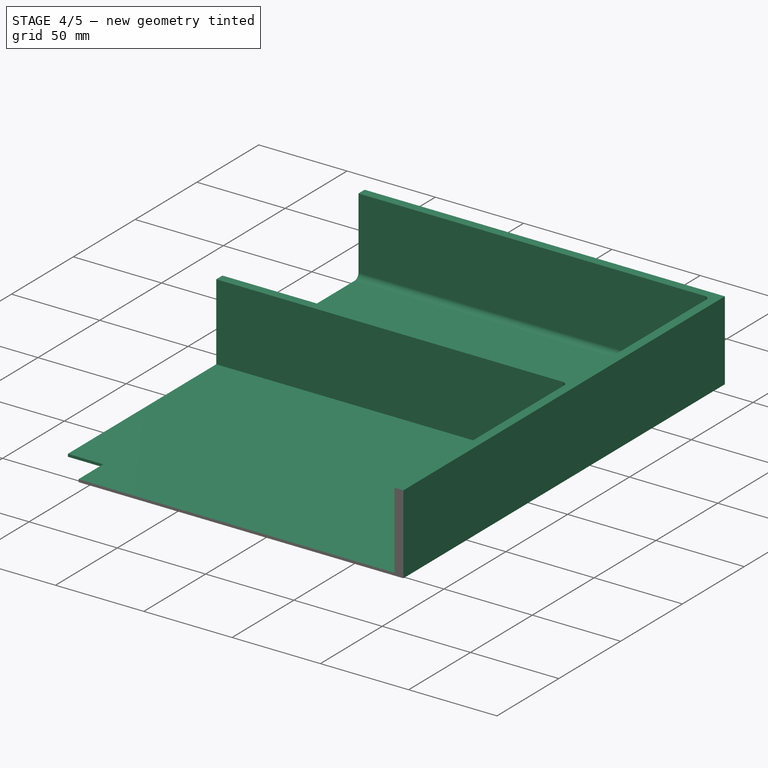
[diagram: stage 4 of 5 — iso view after this stage's code; geometry added in this stage tinted green]
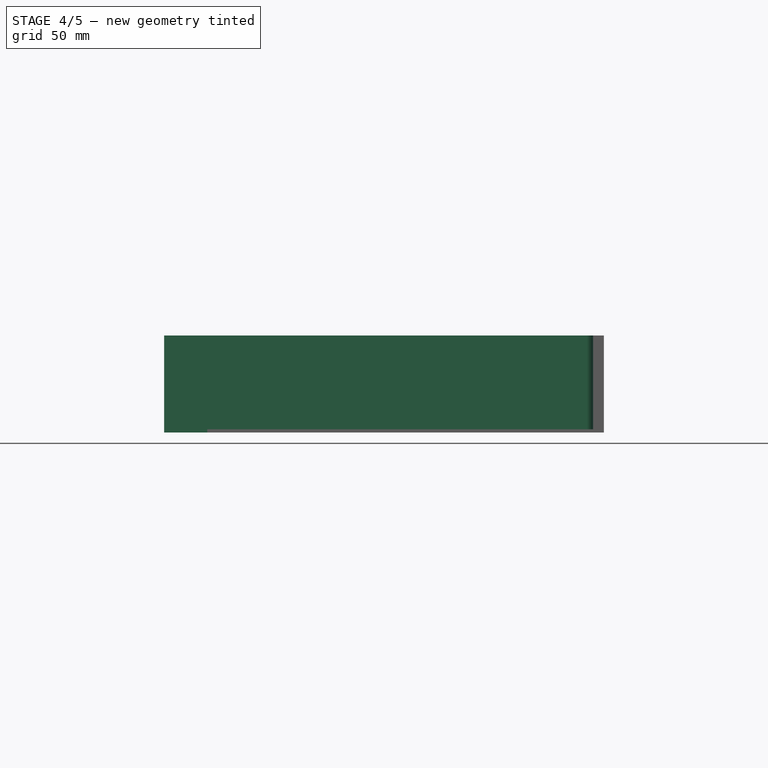
[diagram: stage 4 of 5 — front view after this stage's code; geometry added in this stage tinted green]
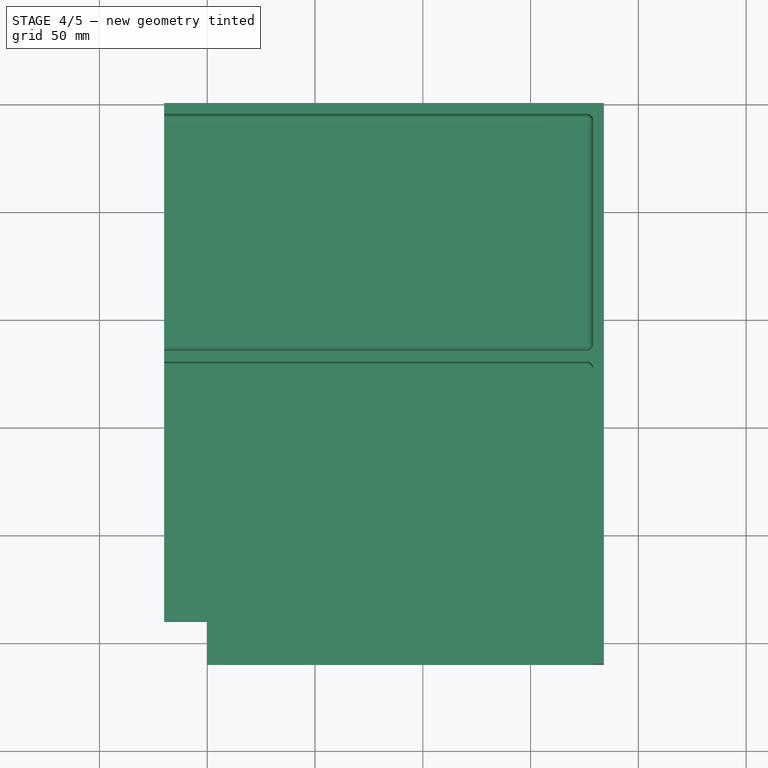
[diagram: stage 4 of 5 — top view after this stage's code; geometry added in this stage tinted green]
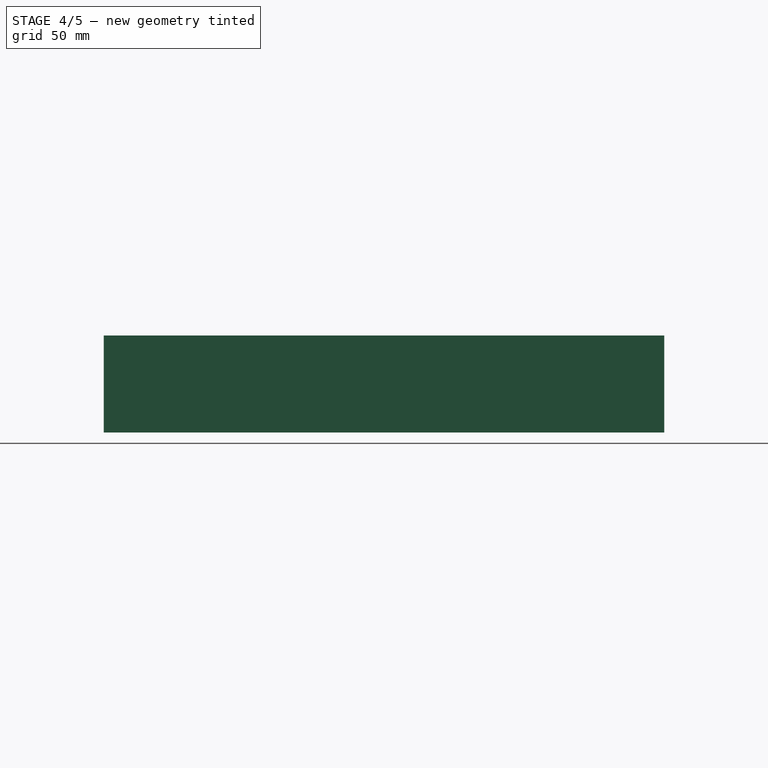
[diagram: stage 4 of 5 — right view after this stage's code; geometry added in this stage tinted green]
FEATURE [PartDesign::Pocket] Pocket
  BaseFeature = -> Pad008
  Direction = (0,0,-1)
  Length = 5
  Length2 = 5
  Profile = -> Sketch008
  ReferenceAxis = -> Sketch008 [N_Axis]
  Reversed = true
  SideType = 0
  Suppressed = false
  Type = 1
  Type2 = 0
FEATURE [PartDesign::LinearPattern] LinearPattern002
  BaseFeature = -> Pocket
  Direction = -> Sketch008 [V_Axis]
  Direction2 = -> Sketch008 [V_Axis]
  Length = 180
  Length2 = 100
  Mode = 1
  Mode2 = 0
  Occurrences = 4
  Occurrences2 = 1
  Offset = 60
  Offset2 = 100
  Originals = -> [Pocket]
  Reversed2 = false
  SpacingPattern = [60]
  SpacingPattern2 = [0]
  Spacings = [-1,-1,-1]
  Suppressed = false
  TransformMode = 0
FEATURE [Sketcher::SketchObject] Sketch011
  ArcFitTolerance = 1e-06
  AttachmentSupport = -> [Origin002]
  ExternalGeometry = -> [Pocket]
  ExternalTypes = [0,0]
  FullyConstrained = true
  MakeInternals = false
  MapMode = 5
  _ExternalGeoVersion = 1
  sketch-geometry (1):
    g0: Circle CenterX=210 CenterY=238 CenterZ=0 NormalX=0 NormalY=0 NormalZ=1 AngleXU=0 Radius=2.6
  constraints (3):
    c: Equal(g-3,g0)
    c: DistanceX(g-4,g0) = 10
    c: DistanceY(g0,g-4) = 2
FEATURE [PartDesign::Pocket] Pocket001
  BaseFeature = -> LinearPattern002
  Direction = (0,0,-1)
  Length = 5
  Length2 = 5
  Profile = -> Sketch011
  ReferenceAxis = -> Sketch011 [N_Axis]
  Reversed = true
  SideType = 0
  Suppressed = false
  Type = 1
  Type2 = 0
FEATURE [PartDesign::LinearPattern] LinearPattern003
  BaseFeature = -> Pocket001
  Direction = -> Sketch011 [H_Axis]
  Direction2 = -> Sketch011 [V_Axis]
  Length = 120
  Length2 = 100
  Mode = 1
  Mode2 = 0
  Occurrences = 3
  Occurrences2 = 1
  Offset = 60
  Offset2 = 100
  Originals = -> [Pocket001]
  Reversed2 = false
  SpacingPattern = [60]
  SpacingPattern2 = [0]
  Spacings = [-1,-1]
  Suppressed = false
  TransformMode = 0
FEATURE [Sketcher::SketchObject] Sketch012
  ArcFitTolerance = 1e-06
  AttachmentSupport = -> [Origin002]
  ExternalGeometry = -> [LinearPattern003]
  ExternalTypes = [0,0]
  FullyConstrained = true
  MakeInternals = false
  MapMode = 5
  _ExternalGeoVersion = 1
  sketch-geometry (2):
    g0: Circle CenterX=381.5 CenterY=239 CenterZ=0 NormalX=0 NormalY=0 NormalZ=1 AngleXU=0 Radius=1.55
    g1: GeomPoint [constr] X=381.5 Y=240 Z=0
  constraints (4):
    c: Symmetric(g-3,g-3,g1)
    c: DistanceY(g0,g1) = 1
    c: Vertical(g0,g1)
    c: Diameter(g0) = 3.1
FEATURE [PartDesign::Pocket] Pocket002
  BaseFeature = -> LinearPattern003
  Direction = (0,0,-1)
  Length = 5
  Length2 = 5
  Profile = -> Sketch012
  ReferenceAxis = -> Sketch012 [N_Axis]
  Reversed = true
  SideType = 0
  Suppressed = false
  Type = 1
  Type2 = 0
FEATURE [PartDesign::Fillet] Fillet003
  Base = -> Pocket002 [Edge32,Edge91,Edge30,Edge31,Edge33]
  BaseFeature = -> Pocket002
  Radius = 1
  SupportTransform = false
  Suppressed = false
  UseAllEdges = false
FEATURE [App::Point] Origin007  label="Origin009"
  Role = Origin
FEATURE [PartDesign::SubShapeBinder] Binder005  label="Master sketch 4"
  BindCopyOnChange = 0
  BindMode = 0
  ClaimChildren = false
  Context = -> Body003 [Binder005.]
  Fuse = false
  MakeFace = true
  OffsetFill = false
  OffsetIntersection = false
  OffsetJoinType = 0
  OffsetOpenResult = false
  PartialLoad = false
  Refine = true
  Relative = true
  Support = -> [Sketch]
  _Version = 2
FEATURE [PartDesign::SubShapeBinder] Binder006  label="Body 3 binder"
  BindCopyOnChange = 0
  BindMode = 0
  ClaimChildren = false
  Context = -> Body003 [Binder006.]
  Fuse = false
  MakeFace = true
  OffsetFill = false
  OffsetIntersection = false
  OffsetJoinType = 0
  OffsetOpenResult = false
  PartialLoad = false
  Refine = true
  Relative = true
  Support = -> [Body002]
  _Version = 2
FEATURE [PartDesign::SubShapeBinder] Binder007  label="Body 4 binder"
  BindCopyOnChange = 0
  BindMode = 0
  ClaimChildren = false
  Context = -> Body003 [Binder007.]
  Fuse = false
  MakeFace = true
  OffsetFill = false
  OffsetIntersection = false
  OffsetJoinType = 0
  OffsetOpenResult = false
  PartialLoad = false
  Refine = true
  Relative = true
  Support = -> [Body001]
  _Version = 2
FEATURE [Sketcher::SketchObject] Sketch018
  ArcFitTolerance = 1e-06
  AttachmentSupport = -> [Origin006]
  ExternalGeometry = -> [Binder005]
  ExternalTypes = [0,0]
  FullyConstrained = true
  MakeInternals = false
  MapMode = 5
  _ExternalGeoVersion = 1
  sketch-geometry (4):
    g0: LineSegment StartX=180 StartY=500 StartZ=0 EndX=384 EndY=500 EndZ=0
    g1: LineSegment StartX=384 StartY=500 StartZ=0 EndX=384 EndY=240 EndZ=0
    g2: LineSegment StartX=200 StartY=240 StartZ=0 EndX=200 EndY=260 EndZ=0
    g3: LineSegment StartX=200 StartY=260 StartZ=0 EndX=180 EndY=260 EndZ=0
  constraints (10):
    c: Coincident(g-3,g0)
    c: Horizontal(g0)
    c: Coincident(g0,g1)
    c: Coincident(g1,g-4)
    c: Vertical(g1)
    c: Coincident(g-4,g2)
    c: Vertical(g2)
    c: Coincident(g2,g3)
    c: Coincident(g3,g-3)
    c: Horizontal(g3)
FEATURE [PartDesign::SubShapeBinder] Binder008  label="Body 1 binder001"
  BindCopyOnChange = 0
  BindMode = 0
  ClaimChildren = false
  Context = -> Body003 [Binder008.]
  Fuse = false
  MakeFace = true
  OffsetFill = false
  OffsetIntersection = false
  OffsetJoinType = 0
  OffsetOpenResult = false
  PartialLoad = false
  Refine = true
  Relative = true
  Support = -> [Body]
  _Version = 2
FEATURE [PartDesign::Pad] Pad012
  Direction = (0,0,1)
  Length = 10
  Length2 = 10
  Profile = -> Sketch018
  ReferenceAxis = -> Sketch018 [N_Axis]
  SideType = 0
  Suppressed = false
  Type = 3
  Type2 = 0
  UpToFace = -> Binder008 [Face6]
FEATURE [Sketcher::SketchObject] Sketch019
  ArcFitTolerance = 1e-06
  AttachmentSupport = -> [Pad012]
  ExternalGeometry = -> [Binder006,Binder007,Pad012]
  ExternalTypes = [0,0,0,0,0,0]
  FullyConstrained = true
  MakeInternals = false
  MapMode = 5
  Placement = pos=(0,0,1.5) rot=(0,0,1;0rad)
  _ExternalGeoVersion = 1
  sketch-geometry (10):
    g0: LineSegment StartX=180 StartY=495 StartZ=0 EndX=180 EndY=500 EndZ=0
    g1: LineSegment StartX=180 StartY=500 StartZ=0 EndX=384 EndY=500 EndZ=0
    g2: LineSegment StartX=384 StartY=500 StartZ=0 EndX=384 EndY=240 EndZ=0
    g3: LineSegment StartX=384 StartY=240 StartZ=0 EndX=379 EndY=240 EndZ=0
    g4: LineSegment StartX=379 StartY=240 StartZ=0 EndX=379 EndY=380 EndZ=0
    g5: LineSegment StartX=379 StartY=380 StartZ=0 EndX=180 EndY=380 EndZ=0
    g6: LineSegment StartX=180 StartY=380 StartZ=0 EndX=180 EndY=385 EndZ=0
    g7: LineSegment StartX=180 StartY=385 StartZ=0 EndX=379 EndY=385 EndZ=0
    g8: LineSegment StartX=379 StartY=385 StartZ=0 EndX=379 EndY=495 EndZ=0
    g9: LineSegment StartX=379 StartY=495 StartZ=0 EndX=180 EndY=495 EndZ=0
  constraints (27):
    c: Coincident(g-3,g0)
    c: Vertical(g0)
    c: Coincident(g0,g1)
    c: Coincident(g1,g-7)
    c: Coincident(g1,g2)
    c: Vertical(g2)
    c: Coincident(g2,g3)
    c: Coincident(g3,g-6)
    c: Coincident(g3,g4)
    c: Vertical(g4)
    c: Coincident(g4,g5)
    c: Horizontal(g5)
    c: Coincident(g5,g6)
    c: Vertical(g6)
    c: Coincident(g6,g7)
    c: Horizontal(g7)
    c: Coincident(g7,g8)
    c: Vertical(g8)
    c: Coincident(g8,g9)
    c: Coincident(g9,g0)
    c: Horizontal(g3)
    c: Horizontal(g9)
    c: Horizontal(g1)
    c: Horizontal(g-4,g5)
    c: Vertical(g6,g0)
    c: Horizontal(g6,g-5)
    c: Vertical(g7,g4)
FEATURE [PartDesign::Pad] Pad013
  BaseFeature = -> Pad012
  Direction = (0,0,1)
  Length = 10
  Length2 = 10
  Profile = -> Sketch019
  ReferenceAxis = -> Sketch019 [N_Axis]
  SideType = 0
  Suppressed = false
  Type = 3
  Type2 = 0
  UpToFace = -> Binder008 [Face11]
FEATURE [PartDesign::Fillet] Fillet005
  Base = -> Pad013 [Edge27,Edge34,Edge47,Edge35,Edge46,Edge36]
  BaseFeature = -> Pad013
  Radius = 3
  SupportTransform = false
  Suppressed = false
  UseAllEdges = false
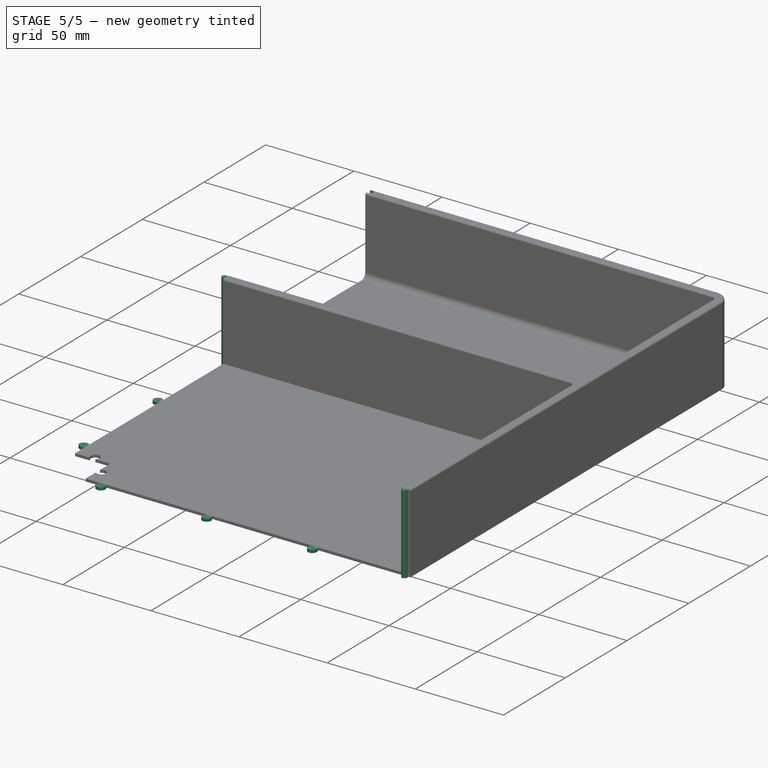
[diagram: stage 5 of 5 — iso view after this stage's code; geometry added in this stage tinted green]
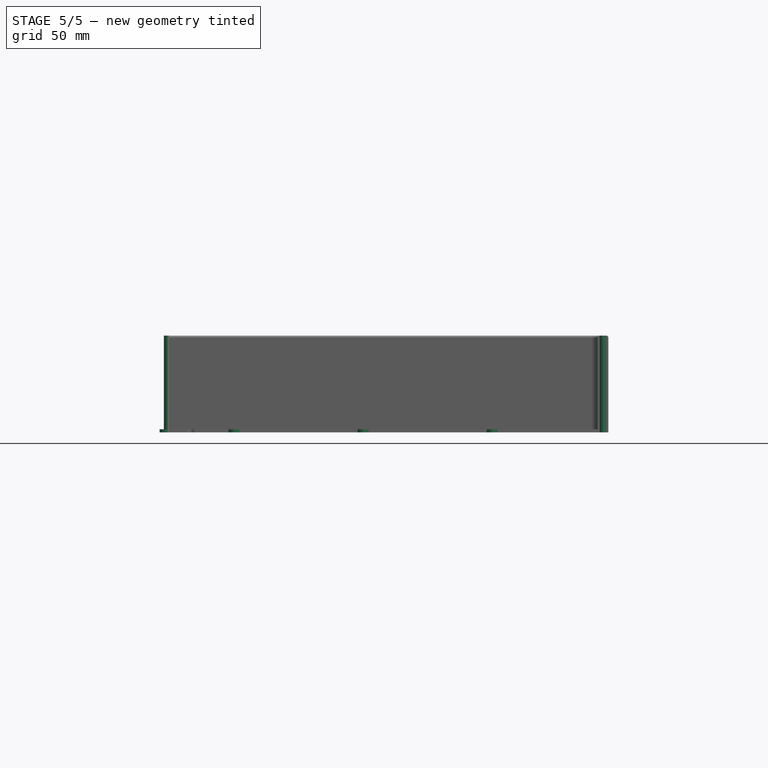
[diagram: stage 5 of 5 — front view after this stage's code; geometry added in this stage tinted green]
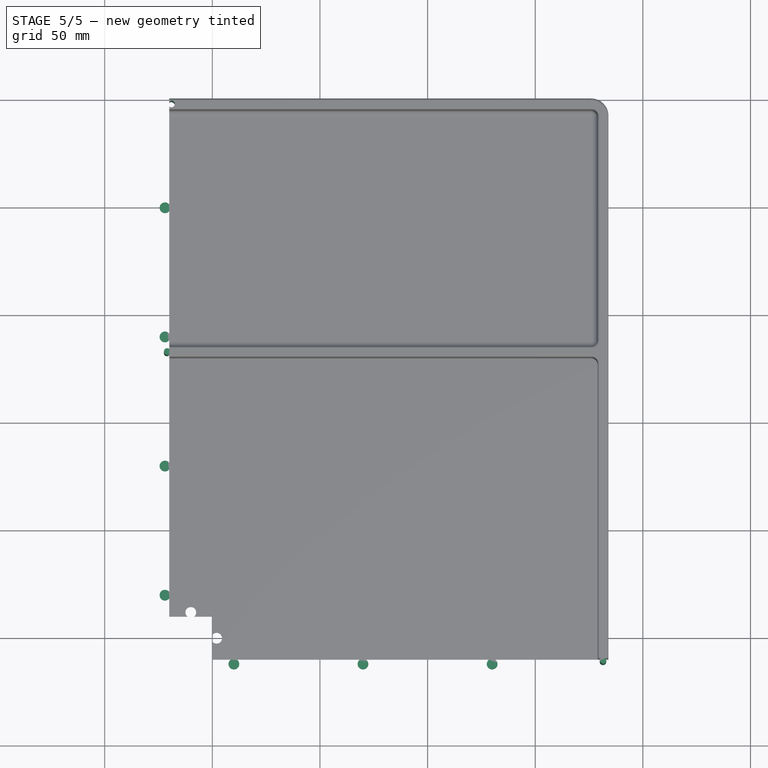
[diagram: stage 5 of 5 — top view after this stage's code; geometry added in this stage tinted green]
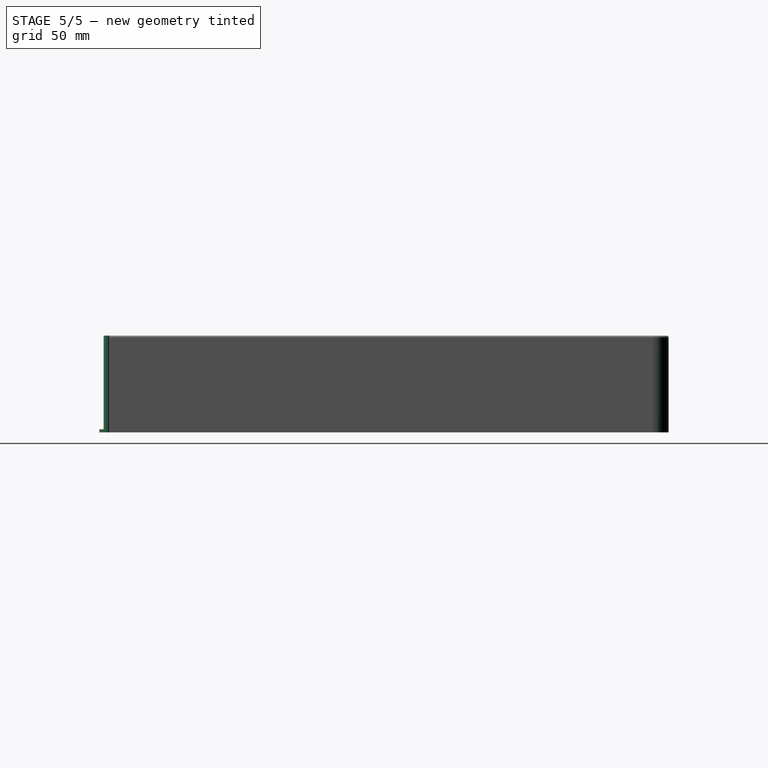
[diagram: stage 5 of 5 — right view after this stage's code; geometry added in this stage tinted green]
FEATURE [PartDesign::Fillet] Fillet006
  Base = -> Fillet005 [Edge57]
  BaseFeature = -> Fillet005
  Radius = 8
  SupportTransform = false
  Suppressed = false
  UseAllEdges = false
FEATURE [Sketcher::SketchObject] Sketch020
  ArcFitTolerance = 1e-06
  AttachmentSupport = -> [Origin006]
  ExternalGeometry = -> [Fillet006]
  ExternalTypes = [0,0]
  FullyConstrained = true
  MakeInternals = false
  MapMode = 5
  _ExternalGeoVersion = 1
  sketch-geometry (4):
    g0: Circle CenterX=381.5 CenterY=239 CenterZ=0 NormalX=0 NormalY=0 NormalZ=1 AngleXU=0 Radius=1.5
    g1: Circle CenterX=179 CenterY=382.5 CenterZ=0 NormalX=0 NormalY=0 NormalZ=1 AngleXU=0 Radius=1.5
    g2: GeomPoint [constr] X=180 Y=382.5 Z=0
    g3: GeomPoint [constr] X=381.5 Y=240 Z=0
  constraints (8):
    c: Diameter(g0) = 3
    c: Diameter(g1) = 3
    c: Symmetric(g-4,g-4,g2)
    c: Horizontal(g1,g2)
    c: DistanceX(g1,g2) = 1
    c: Symmetric(g-3,g-3,g3)
    c: Vertical(g3,g0)
    c: DistanceY(g0,g3) = 1
FEATURE [PartDesign::Pad] Pad014
  BaseFeature = -> Fillet006
  Direction = (0,0,1)
  Length = 10
  Length2 = 10
  Profile = -> Sketch020
  ReferenceAxis = -> Sketch020 [N_Axis]
  Refine = true
  SideType = 0
  Suppressed = false
  Type = 3
  Type2 = 0
  UpToFace = -> Fillet006 [Face1]
FEATURE [Sketcher::SketchObject] Sketch021
  ArcFitTolerance = 1e-06
  AttachmentSupport = -> [Origin006]
  ExternalGeometry = -> [Pad014]
  ExternalTypes = [0]
  FullyConstrained = true
  MakeInternals = false
  MapMode = 5
  _ExternalGeoVersion = 1
  sketch-geometry (2):
    g0: Circle CenterX=181 CenterY=497.5 CenterZ=0 NormalX=0 NormalY=0 NormalZ=1 AngleXU=0 Radius=1.55
    g1: GeomPoint [constr] X=180 Y=497.5 Z=0
  constraints (4):
    c: Diameter(g0) = 3.1
    c: Symmetric(g-3,g-3,g1)
    c: Horizontal(g0,g1)
    c: DistanceX(g1,g0) = 1
FEATURE [PartDesign::Pocket] Pocket005
  BaseFeature = -> Pad014
  Direction = (0,0,-1)
  Length = 5
  Length2 = 5
  Profile = -> Sketch021
  ReferenceAxis = -> Sketch021 [N_Axis]
  Reversed = true
  SideType = 0
  Suppressed = false
  Type = 1
  Type2 = 0
FEATURE [PartDesign::Fillet] Fillet007
  Base = -> Pocket005 [Edge12,Edge1,Edge5]
  BaseFeature = -> Pocket005
  Radius = 1
  SupportTransform = false
  Suppressed = false
  UseAllEdges = false
FEATURE [Sketcher::SketchObject] Sketch022
  ArcFitTolerance = 1e-06
  AttachmentSupport = -> [Origin006]
  ExternalGeometry = -> [Binder007]
  ExternalTypes = [0]
  FullyConstrained = true
  MakeInternals = false
  MapMode = 5
  _ExternalGeoVersion = 1
  sketch-geometry (1):
    g0: Circle CenterX=330 CenterY=238 CenterZ=0 NormalX=0 NormalY=0 NormalZ=1 AngleXU=0 Radius=2.5
  constraints (2):
    c: Diameter(g0) = 5
    c: Coincident(g0,g-3)
FEATURE [PartDesign::Pad] Pad015
  BaseFeature = -> Fillet007
  Direction = (0,0,1)
  Length = 10
  Length2 = 10
  Profile = -> Sketch022
  ReferenceAxis = -> Sketch022 [N_Axis]
  Refine = true
  SideType = 0
  Suppressed = false
  Type = 3
  Type2 = 0
  UpToFace = -> Fillet007 [Face44]
FEATURE [PartDesign::LinearPattern] LinearPattern005
  BaseFeature = -> Pad015
  Direction = -> Sketch022 [H_Axis]
  Direction2 = -> Sketch022 [V_Axis]
  Length = 120
  Length2 = 100
  Mode = 1
  Mode2 = 0
  Occurrences = 3
  Occurrences2 = 1
  Offset = 60
  Offset2 = 100
  Originals = -> [Pad015]
  Refine = true
  Reversed = true
  Reversed2 = false
  SpacingPattern = [60]
  SpacingPattern2 = [0]
  Spacings = [-1,-1]
  Suppressed = false
  TransformMode = 0
FEATURE [Sketcher::SketchObject] Sketch023
  ArcFitTolerance = 1e-06
  AttachmentSupport = -> [Origin006]
  ExternalGeometry = -> [Binder006]
  ExternalTypes = [0]
  FullyConstrained = true
  MakeInternals = false
  MapMode = 5
  _ExternalGeoVersion = 1
  sketch-geometry (1):
    g0: Circle CenterX=178 CenterY=270 CenterZ=0 NormalX=0 NormalY=0 NormalZ=1 AngleXU=0 Radius=2.5
  constraints (2):
    c: Diameter(g0) = 5
    c: Coincident(g0,g-3)
FEATURE [PartDesign::Pad] Pad016
  BaseFeature = -> LinearPattern005
  Direction = (0,0,1)
  Length = 10
  Length2 = 10
  Profile = -> Sketch023
  ReferenceAxis = -> Sketch023 [N_Axis]
  SideType = 0
  Suppressed = false
  Type = 3
  Type2 = 0
  UpToFace = -> Pad012 [Face4]
FEATURE [PartDesign::LinearPattern] LinearPattern006
  BaseFeature = -> Pad016
  Direction = -> Sketch023 [V_Axis]
  Direction2 = -> Sketch023 [V_Axis]
  Length = 180
  Length2 = 100
  Mode = 1
  Mode2 = 0
  Occurrences = 4
  Occurrences2 = 1
  Offset = 60
  Offset2 = 100
  Originals = -> [Pad016]
  Refine = true
  Reversed2 = false
  SpacingPattern = [60]
  SpacingPattern2 = [0]
  Spacings = [-1,-1,-1]
  Suppressed = false
  TransformMode = 0
FEATURE [Sketcher::SketchObject] Sketch024
  ArcFitTolerance = 1e-06
  AttachmentSupport = -> [Origin006]
  ExternalGeometry = -> [Binder008]
  ExternalTypes = [0,0]
  FullyConstrained = true
  MakeInternals = false
  MapMode = 5
  _ExternalGeoVersion = 1
  sketch-geometry (2):
    g0: Circle CenterX=190 CenterY=262 CenterZ=0 NormalX=0 NormalY=0 NormalZ=1 AngleXU=0 Radius=2.5
    g1: Circle CenterX=202 CenterY=250 CenterZ=0 NormalX=0 NormalY=0 NormalZ=1 AngleXU=0 Radius=2.5
  constraints (4):
    c: Diameter(g0) = 5
    c: Coincident(g0,g-3)
    c: Diameter(g1) = 5
    c: Coincident(g1,g-4)
FEATURE [PartDesign::Pocket] Pocket006
  BaseFeature = -> LinearPattern006
  Direction = (0,0,-1)
  Length = 5
  Length2 = 5
  Profile = -> Sketch024
  ReferenceAxis = -> Sketch024 [N_Axis]
  Reversed = true
  SideType = 0
  Suppressed = false
  Type = 1
  Type2 = 0
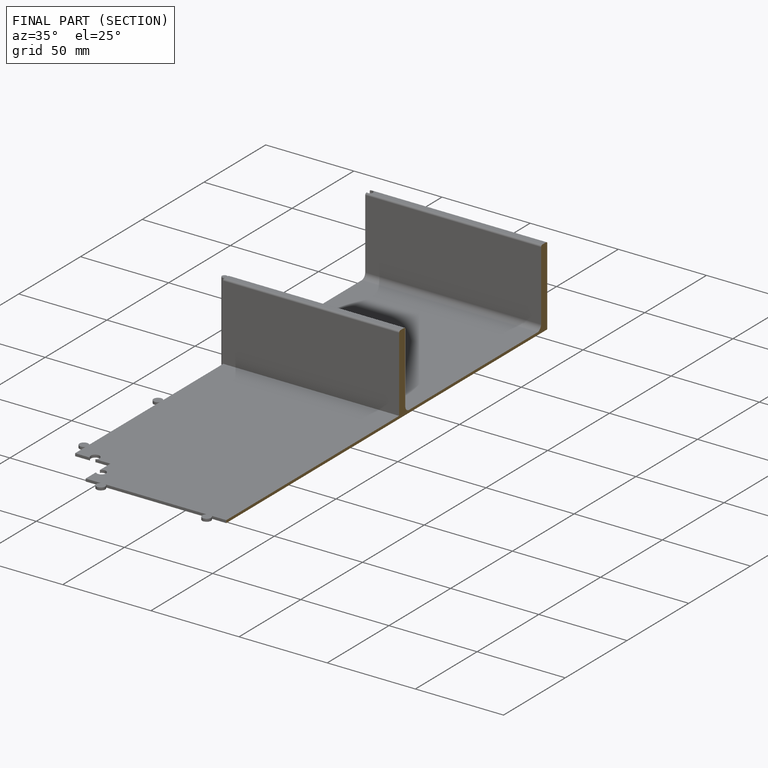
[diagram: finished part — half-section view (interior)]
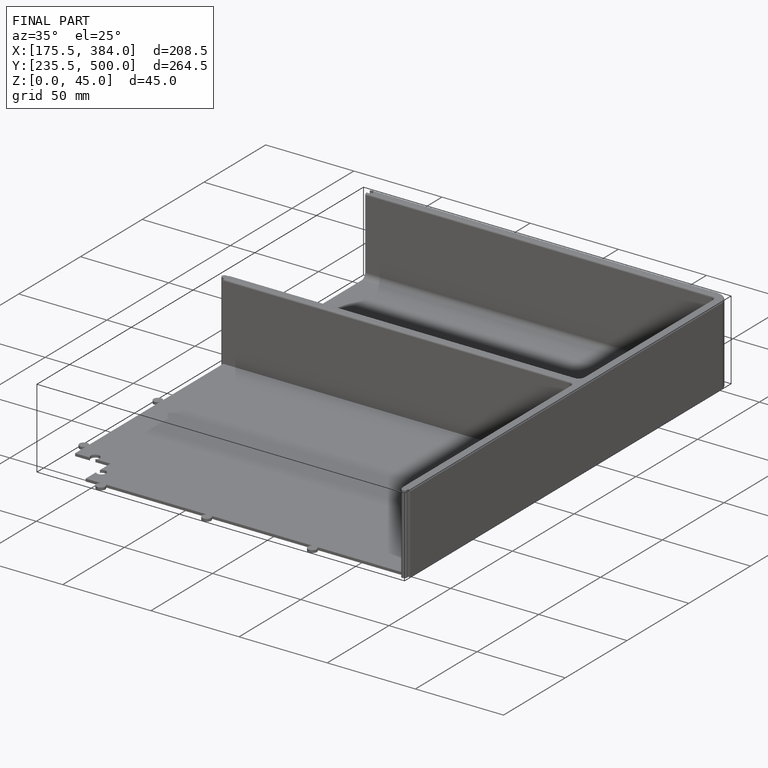
[diagram: finished part — iso view with bounding-box wireframe]
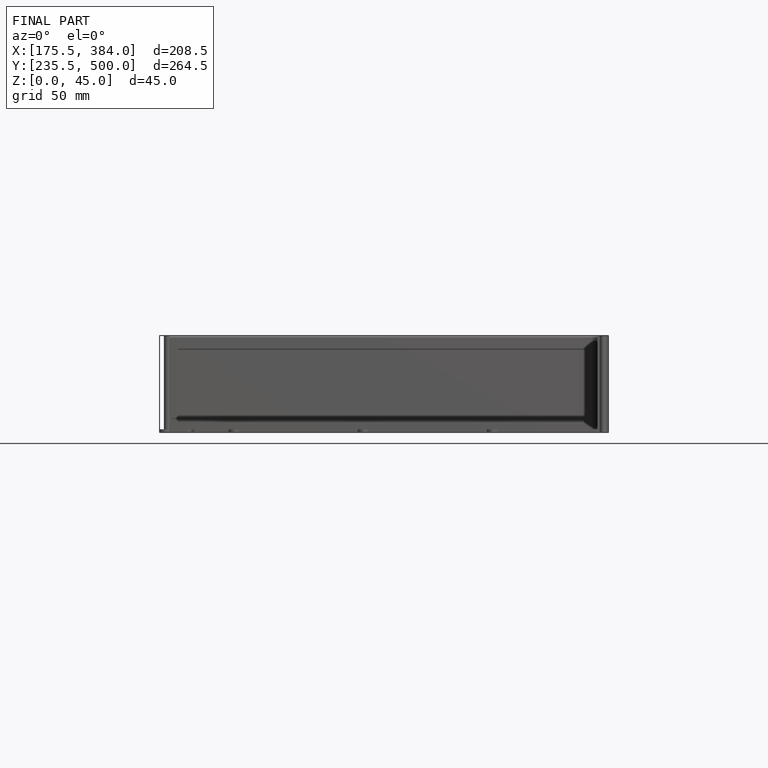
[diagram: finished part — front view with bounding-box wireframe]
